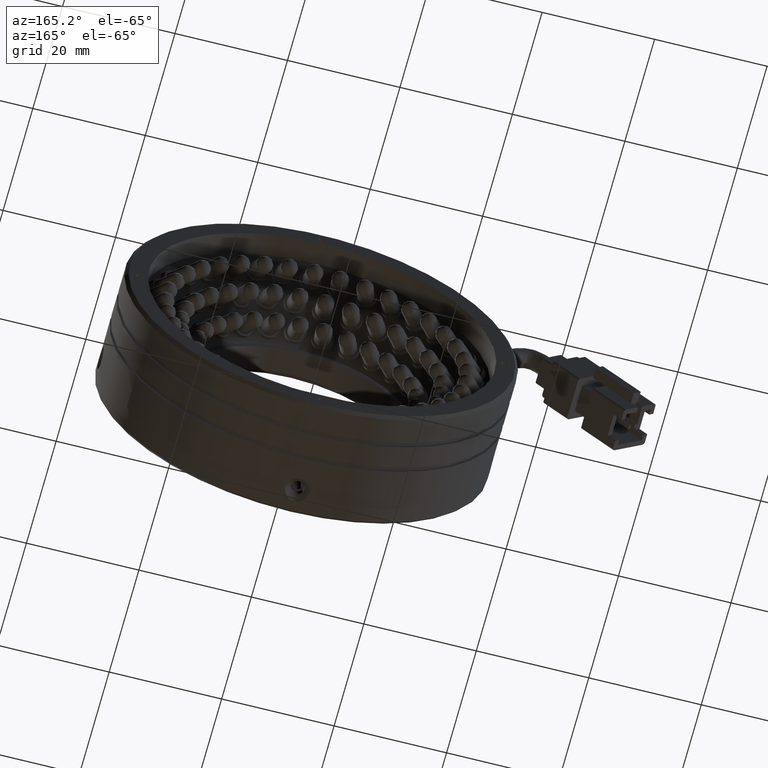
[diagram: clean part render]
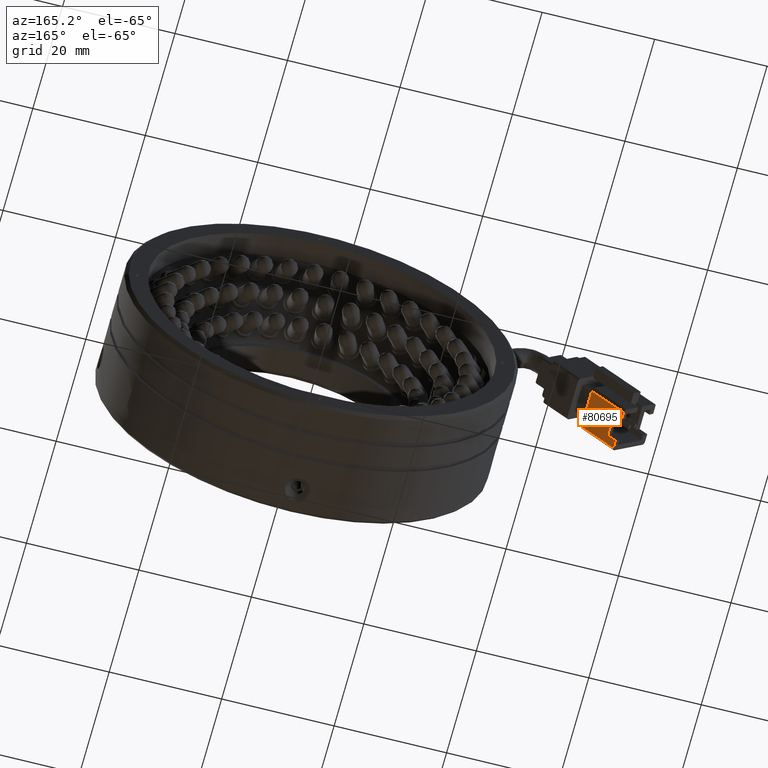
[diagram: same view with one face highlighted and labeled with its STEP entity id]
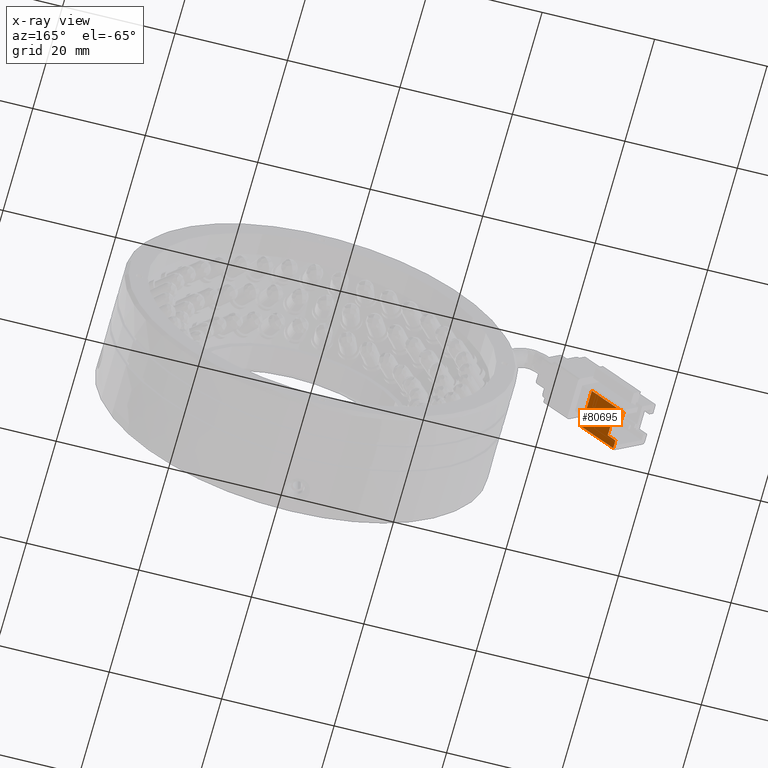
[diagram: x-ray of the same camera — body ghosted, the highlighted face saturated]
A machine part, auxiliary view. The second image highlights one B-rep face of the part: STEP entity #80695.
The next image is the same camera in x-ray: the body ghosted, the highlighted face saturated — about 0% of this face is hidden behind the body in this view.
In plain terms, the highlighted planar face has unit normal (-0.7071, 0, 0.7071).
Its self-contained STEP definition (entity closure, byte-faithful):
#772 = ORIENTED_EDGE ( 'NONE', *, *, #76090, .F. ) ;
#1530 = DIRECTION ( 'NONE',  ( -0.7071067811865441300, 9.758221801635284500E-017, 0.7071067811865510100 ) ) ;
#2373 = VECTOR ( 'NONE', #17107, 1000.000000000000000 ) ;
#2961 = VECTOR ( 'NONE', #82810, 999.9999999999998900 ) ;
#4194 = DIRECTION ( 'NONE',  ( 0.7071067811865512400, 1.204830254938410400E-016, 0.7071067811865439100 ) ) ;
#5235 = CARTESIAN_POINT ( 'NONE',  ( -59.63816690590845600, -0.6927286648913054700, 19.44543648263034900 ) ) ;
#8511 = ORIENTED_EDGE ( 'NONE', *, *, #78867, .F. ) ;
#10554 = ORIENTED_EDGE ( 'NONE', *, *, #54634, .T. ) ;
#11263 = DIRECTION ( 'NONE',  ( -1.383106069708946600E-016, 1.000000000000000000, -3.207812171823815400E-017 ) ) ;
#14572 = DIRECTION ( 'NONE',  ( -1.383106069708946600E-016, 1.000000000000000000, -3.207812171823815400E-017 ) ) ;
#17107 = DIRECTION ( 'NONE',  ( -6.087162820050389300E-017, -1.000000000000000000, 7.713046796467039100E-017 ) ) ;
#20201 = LINE ( 'NONE', #77195, #2373 ) ;
#20411 = ORIENTED_EDGE ( 'NONE', *, *, #22840, .F. ) ;
#20782 = LINE ( 'NONE', #22518, #2961 ) ;
#20833 = LINE ( 'NONE', #44372, #70115 ) ;
#22518 = CARTESIAN_POINT ( 'NONE',  ( -59.63816690590845600, 4.807271335108696400, 19.44543648263034900 ) ) ;
#22840 = EDGE_CURVE ( 'NONE', #69364, #33107, #23167, .T. ) ;
#23056 = VERTEX_POINT ( 'NONE', #25237 ) ;
#23167 = LINE ( 'NONE', #69772, #56677 ) ;
#25237 = CARTESIAN_POINT ( 'NONE',  ( -58.28149063579247300, -0.6927286648913054700, 20.80211275274632100 ) ) ;
#25535 = DIRECTION ( 'NONE',  ( -0.7071067811865510100, -1.149673585146712700E-017, -0.7071067811865441300 ) ) ;
#27115 = VERTEX_POINT ( 'NONE', #31826 ) ;
#27501 = VERTEX_POINT ( 'NONE', #63396 ) ;
#31299 = VECTOR ( 'NONE', #14572, 1000.000000000000000 ) ;
#31632 = LINE ( 'NONE', #44702, #67253 ) ;
#31826 = CARTESIAN_POINT ( 'NONE',  ( -59.63816690590844900, -0.6927286648913054700, 19.44543648263035300 ) ) ;
#33107 = VERTEX_POINT ( 'NONE', #54411 ) ;
#33708 = ORIENTED_EDGE ( 'NONE', *, *, #54767, .F. ) ;
#34340 = ORIENTED_EDGE ( 'NONE', *, *, #48480, .F. ) ;
#34573 = ORIENTED_EDGE ( 'NONE', *, *, #84475, .F. ) ;
#39061 = FACE_OUTER_BOUND ( 'NONE', #56942, .T. ) ;
#40577 = VERTEX_POINT ( 'NONE', #57333 ) ;
#41379 = VECTOR ( 'NONE', #71455, 1000.000000000000000 ) ;
#41706 = CARTESIAN_POINT ( 'NONE',  ( -59.63816690590845600, 4.807271335108696400, 19.44543648263034900 ) ) ;
#44372 = CARTESIAN_POINT ( 'NONE',  ( -59.63816690590843500, -2.192728664891303100, 19.44543648263034900 ) ) ;
#44702 = CARTESIAN_POINT ( 'NONE',  ( -53.98131265641606500, 4.807271335108696400, 25.10229073212272200 ) ) ;
#48451 = DIRECTION ( 'NONE',  ( -6.087162820050389300E-017, -1.000000000000000000, 7.713046796467039100E-017 ) ) ;
#48480 = EDGE_CURVE ( 'NONE', #27501, #69364, #59213, .T. ) ;
#51167 = VERTEX_POINT ( 'NONE', #63202 ) ;
#54411 = CARTESIAN_POINT ( 'NONE',  ( -58.28149063579248000, 3.307271335108694600, 20.80211275274632100 ) ) ;
#54634 = EDGE_CURVE ( 'NONE', #51167, #27115, #66905, .T. ) ;
#54767 = EDGE_CURVE ( 'NONE', #40577, #27501, #20782, .T. ) ;
#56677 = VECTOR ( 'NONE', #76517, 999.9999999999998900 ) ;
#56942 = EDGE_LOOP ( 'NONE', ( #20411, #34340, #33708, #8511, #57818, #10554, #34573, #772 ) ) ;
#57333 = CARTESIAN_POINT ( 'NONE',  ( -53.98131265641605100, 4.807271335108696400, 25.10229073212271400 ) ) ;
#57818 = ORIENTED_EDGE ( 'NONE', *, *, #83867, .F. ) ;
#58323 = LINE ( 'NONE', #5235, #64611 ) ;
#59213 = LINE ( 'NONE', #64705, #41379 ) ;
#60378 = AXIS2_PLACEMENT_3D ( 'NONE', #41706, #1530, #48451 ) ;
#62185 = CARTESIAN_POINT ( 'NONE',  ( -59.63816690590844900, 3.307271335108694600, 19.44543648263035300 ) ) ;
#63202 = CARTESIAN_POINT ( 'NONE',  ( -59.63816690590843500, -2.192728664891303100, 19.44543648263035600 ) ) ;
#63396 = CARTESIAN_POINT ( 'NONE',  ( -59.63816690590845600, 4.807271335108696400, 19.44543648263034900 ) ) ;
#64611 = VECTOR ( 'NONE', #25535, 999.9999999999998900 ) ;
#64705 = CARTESIAN_POINT ( 'NONE',  ( -59.63816690590845600, 4.807271335108696400, 19.44543648263034900 ) ) ;
#66905 = LINE ( 'NONE', #74946, #31299 ) ;
#67253 = VECTOR ( 'NONE', #11263, 1000.000000000000000 ) ;
#69348 = VERTEX_POINT ( 'NONE', #81456 ) ;
#69364 = VERTEX_POINT ( 'NONE', #62185 ) ;
#69772 = CARTESIAN_POINT ( 'NONE',  ( -59.63816690590845600, 3.307271335108694600, 19.44543648263034900 ) ) ;
#70115 = VECTOR ( 'NONE', #4194, 999.9999999999998900 ) ;
#71455 = DIRECTION ( 'NONE',  ( -6.087162820050389300E-017, -1.000000000000000000, 7.713046796467039100E-017 ) ) ;
#74946 = CARTESIAN_POINT ( 'NONE',  ( -59.63816690590844900, 4.807271335108696400, 19.44543648263035600 ) ) ;
#76090 = EDGE_CURVE ( 'NONE', #33107, #23056, #20201, .T. ) ;
#76517 = DIRECTION ( 'NONE',  ( 0.7071067811865510100, 1.149673585146712700E-017, 0.7071067811865441300 ) ) ;
#77195 = CARTESIAN_POINT ( 'NONE',  ( -58.28149063579247300, 4.807271335108696400, 20.80211275274632100 ) ) ;
#78867 = EDGE_CURVE ( 'NONE', #69348, #40577, #31632, .T. ) ;
#80695 = ADVANCED_FACE ( 'NONE', ( #39061 ), #81501, .F. ) ;
#81456 = CARTESIAN_POINT ( 'NONE',  ( -53.98131265641605100, -2.192728664891302200, 25.10229073212270700 ) ) ;
#81501 = PLANE ( 'NONE',  #60378 ) ;
#82810 = DIRECTION ( 'NONE',  ( -0.7071067811865510100, -1.149673585146712700E-017, -0.7071067811865441300 ) ) ;
#83867 = EDGE_CURVE ( 'NONE', #51167, #69348, #20833, .T. ) ;
#84475 = EDGE_CURVE ( 'NONE', #23056, #27115, #58323, .T. ) ;